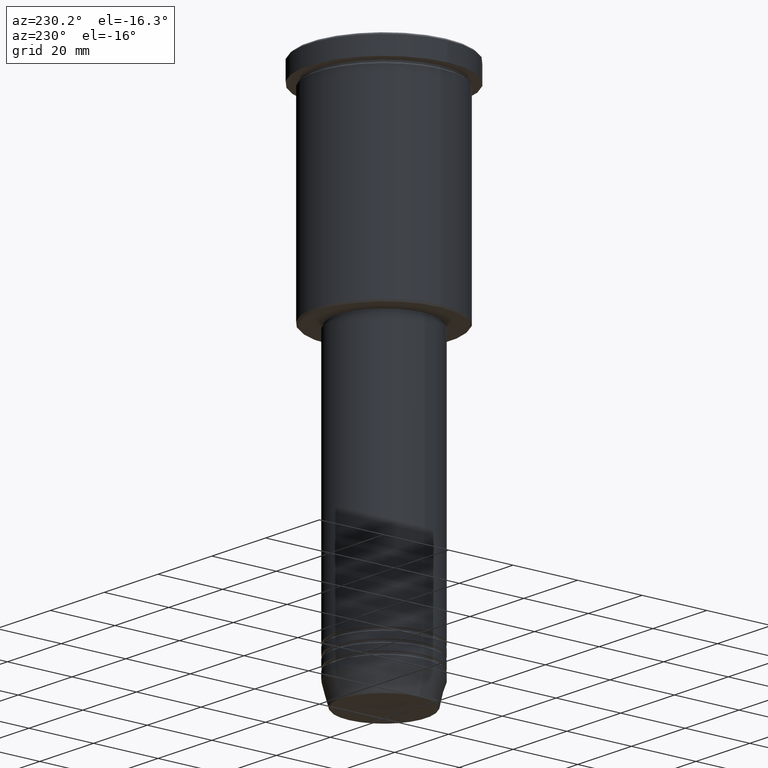
[diagram: clean part render]
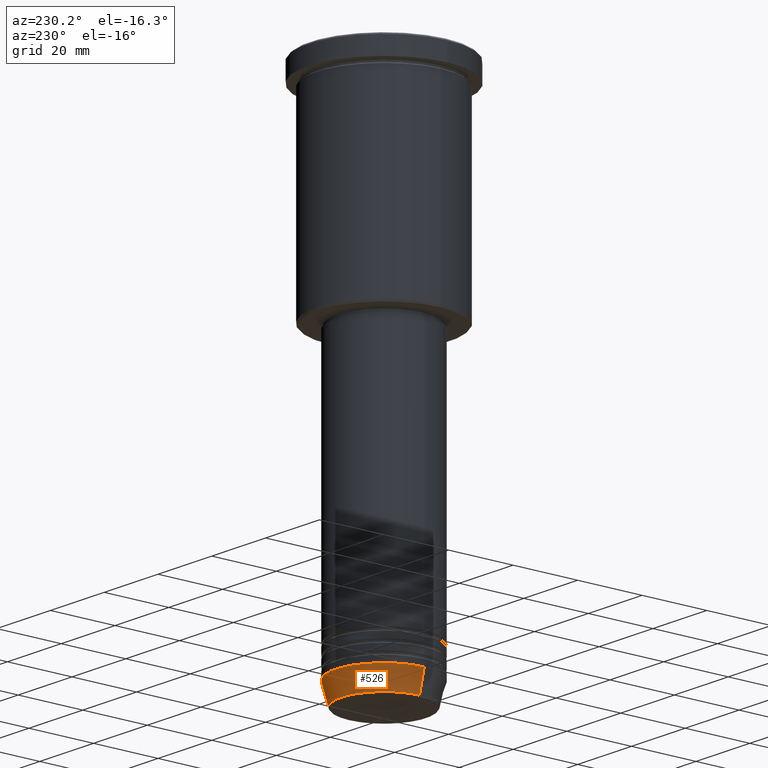
[diagram: same view with one face highlighted and labeled with its STEP entity id]
A machine part, auxiliary view. The second image highlights one B-rep face of the part: STEP entity #526.
In plain terms, the highlighted conical surface has half-angle 15 deg.
Its self-contained STEP definition (entity closure, byte-faithful):
#106 = CARTESIAN_POINT ( 'NONE',  ( 13.22365507213719305, 0.000000000000000000, -160.6294095225512137 ) ) ;
#184 = CARTESIAN_POINT ( 'NONE',  ( 0.000000000000000000, 0.000000000000000000, -154.0000000000000000 ) ) ;
#196 = DIRECTION ( 'NONE',  ( -0.2588190451025213501, 3.169619151431772337E-17, 0.9659258262890680902 ) ) ;
#207 = AXIS2_PLACEMENT_3D ( 'NONE', #697, #402, #1042 ) ;
#214 = CIRCLE ( 'NONE', #695, 13.22365507213719305 ) ;
#220 = CARTESIAN_POINT ( 'NONE',  ( -13.22365507213719305, 1.728200442216588583E-15, -160.6294095225512137 ) ) ;
#221 = EDGE_CURVE ( 'NONE', #563, #750, #778, .T. ) ;
#272 = CIRCLE ( 'NONE', #207, 15.00000000000000000 ) ;
#317 = CARTESIAN_POINT ( 'NONE',  ( -15.00000000000000000, 1.836970198721029589E-15, -154.0000000000000000 ) ) ;
#378 = AXIS2_PLACEMENT_3D ( 'NONE', #184, #460, #1099 ) ;
#402 = DIRECTION ( 'NONE',  ( -0.000000000000000000, -0.000000000000000000, 1.000000000000000000 ) ) ;
#428 = CARTESIAN_POINT ( 'NONE',  ( 15.00000000000000000, 0.000000000000000000, -154.0000000000000000 ) ) ;
#434 = ORIENTED_EDGE ( 'NONE', *, *, #221, .F. ) ;
#460 = DIRECTION ( 'NONE',  ( -0.000000000000000000, -0.000000000000000000, 1.000000000000000000 ) ) ;
#474 = LINE ( 'NONE', #853, #1032 ) ;
#482 = EDGE_CURVE ( 'NONE', #563, #1168, #214, .T. ) ;
#519 = ORIENTED_EDGE ( 'NONE', *, *, #881, .T. ) ;
#526 = ADVANCED_FACE ( 'NONE', ( #855 ), #904, .T. ) ;
#563 = VERTEX_POINT ( 'NONE', #106 ) ;
#577 = VECTOR ( 'NONE', #1029, 1000.000000000000000 ) ;
#584 = DIRECTION ( 'NONE',  ( -0.000000000000000000, -0.000000000000000000, 1.000000000000000000 ) ) ;
#660 = ORIENTED_EDGE ( 'NONE', *, *, #482, .T. ) ;
#667 = EDGE_CURVE ( 'NONE', #750, #1134, #272, .T. ) ;
#695 = AXIS2_PLACEMENT_3D ( 'NONE', #742, #584, #749 ) ;
#697 = CARTESIAN_POINT ( 'NONE',  ( 0.000000000000000000, 0.000000000000000000, -154.0000000000000000 ) ) ;
#721 = EDGE_LOOP ( 'NONE', ( #660, #519, #760, #434 ) ) ;
#742 = CARTESIAN_POINT ( 'NONE',  ( 0.000000000000000000, 0.000000000000000000, -160.6294095225512137 ) ) ;
#749 = DIRECTION ( 'NONE',  ( 1.000000000000000000, 0.000000000000000000, 0.000000000000000000 ) ) ;
#750 = VERTEX_POINT ( 'NONE', #428 ) ;
#760 = ORIENTED_EDGE ( 'NONE', *, *, #667, .F. ) ;
#778 = LINE ( 'NONE', #1145, #577 ) ;
#853 = CARTESIAN_POINT ( 'NONE',  ( -15.00000000000000000, 1.836970198721029589E-15, -154.0000000000000000 ) ) ;
#855 = FACE_OUTER_BOUND ( 'NONE', #721, .T. ) ;
#881 = EDGE_CURVE ( 'NONE', #1168, #1134, #474, .T. ) ;
#904 = CONICAL_SURFACE ( 'NONE', #378, 15.00000000000000000, 0.2617993877991500740 ) ;
#1029 = DIRECTION ( 'NONE',  ( 0.2588190451025213501, 0.000000000000000000, 0.9659258262890680902 ) ) ;
#1032 = VECTOR ( 'NONE', #196, 1000.000000000000000 ) ;
#1042 = DIRECTION ( 'NONE',  ( 1.000000000000000000, 0.000000000000000000, 0.000000000000000000 ) ) ;
#1099 = DIRECTION ( 'NONE',  ( 1.000000000000000000, 0.000000000000000000, 0.000000000000000000 ) ) ;
#1134 = VERTEX_POINT ( 'NONE', #317 ) ;
#1145 = CARTESIAN_POINT ( 'NONE',  ( 15.00000000000000000, 0.000000000000000000, -154.0000000000000000 ) ) ;
#1168 = VERTEX_POINT ( 'NONE', #220 ) ;